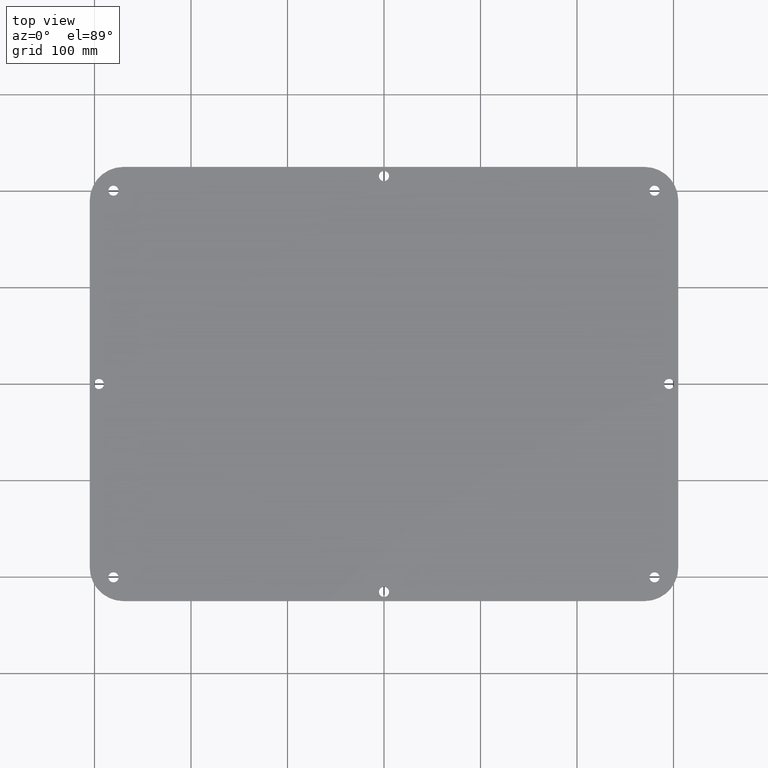
[diagram: clean part render]
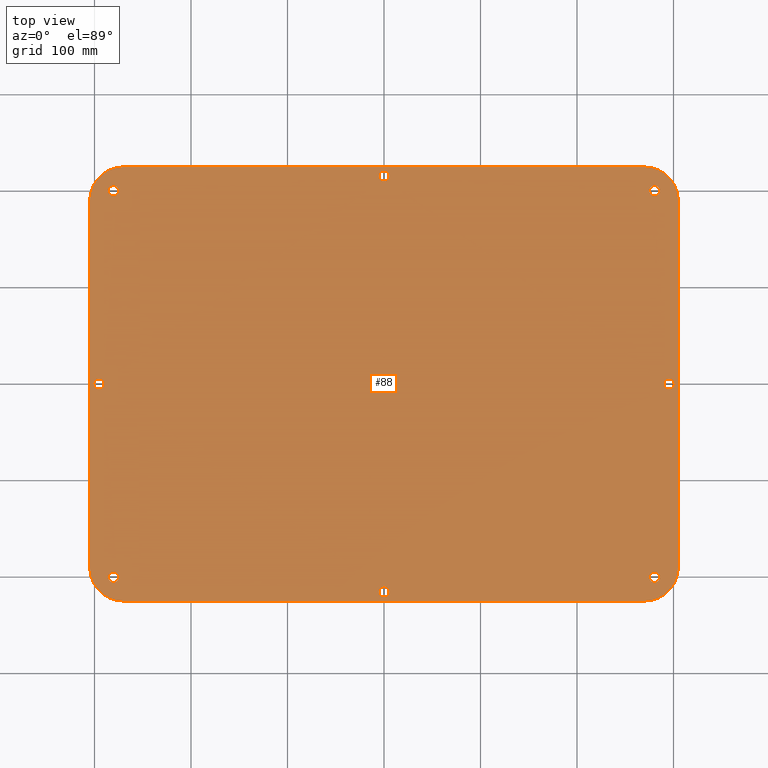
[diagram: same view with one face highlighted and labeled with its STEP entity id]
A machine part, top view. The second image highlights one B-rep face of the part: STEP entity #88.
In plain terms, the highlighted planar face has unit normal (0, 0, 1).
Its self-contained STEP definition (entity closure, byte-faithful):
#50=FACE_BOUND('',#137,.T.);
#51=FACE_BOUND('',#138,.T.);
#52=FACE_BOUND('',#139,.T.);
#53=FACE_BOUND('',#140,.T.);
#54=FACE_BOUND('',#141,.T.);
#55=FACE_BOUND('',#142,.T.);
#56=FACE_BOUND('',#143,.T.);
#57=FACE_BOUND('',#144,.T.);
#70=PLANE('',#403);
#88=ADVANCED_FACE('',(#110,#50,#51,#52,#53,#54,#55,#56,#57),#70,.T.);
#110=FACE_OUTER_BOUND('',#136,.T.);
#136=EDGE_LOOP('',(#234,#235,#236,#237,#238,#239,#240,#241));
#137=EDGE_LOOP('',(#242));
#138=EDGE_LOOP('',(#243));
#139=EDGE_LOOP('',(#244));
#140=EDGE_LOOP('',(#245));
#141=EDGE_LOOP('',(#246));
#142=EDGE_LOOP('',(#247));
#143=EDGE_LOOP('',(#248));
#144=EDGE_LOOP('',(#249));
#158=LINE('',#521,#174);
#162=LINE('',#533,#178);
#166=LINE('',#545,#182);
#169=LINE('',#589,#185);
#174=VECTOR('',#417,1.);
#178=VECTOR('',#429,1.);
#182=VECTOR('',#441,1.);
#185=VECTOR('',#494,1.);
#234=ORIENTED_EDGE('',*,*,#300,.T.);
#235=ORIENTED_EDGE('',*,*,#304,.T.);
#236=ORIENTED_EDGE('',*,*,#307,.T.);
#237=ORIENTED_EDGE('',*,*,#310,.T.);
#238=ORIENTED_EDGE('',*,*,#313,.T.);
#239=ORIENTED_EDGE('',*,*,#316,.T.);
#240=ORIENTED_EDGE('',*,*,#319,.T.);
#241=ORIENTED_EDGE('',*,*,#335,.T.);
#242=ORIENTED_EDGE('',*,*,#332,.T.);
#243=ORIENTED_EDGE('',*,*,#330,.T.);
#244=ORIENTED_EDGE('',*,*,#328,.F.);
#245=ORIENTED_EDGE('',*,*,#326,.F.);
#246=ORIENTED_EDGE('',*,*,#324,.T.);
#247=ORIENTED_EDGE('',*,*,#322,.T.);
#248=ORIENTED_EDGE('',*,*,#320,.F.);
#249=ORIENTED_EDGE('',*,*,#336,.F.);
#268=VERTEX_POINT('',#512);
#269=VERTEX_POINT('',#514);
#271=VERTEX_POINT('',#520);
#273=VERTEX_POINT('',#526);
#275=VERTEX_POINT('',#532);
#277=VERTEX_POINT('',#538);
#279=VERTEX_POINT('',#544);
#281=VERTEX_POINT('',#550);
#282=VERTEX_POINT('',#554);
#284=VERTEX_POINT('',#559);
#286=VERTEX_POINT('',#564);
#288=VERTEX_POINT('',#569);
#290=VERTEX_POINT('',#574);
#292=VERTEX_POINT('',#579);
#294=VERTEX_POINT('',#584);
#296=VERTEX_POINT('',#592);
#300=EDGE_CURVE('',#269,#268,#339,.T.);
#304=EDGE_CURVE('',#268,#271,#158,.T.);
#307=EDGE_CURVE('',#271,#273,#341,.T.);
#310=EDGE_CURVE('',#273,#275,#162,.T.);
#313=EDGE_CURVE('',#275,#277,#343,.T.);
#316=EDGE_CURVE('',#277,#279,#166,.T.);
#319=EDGE_CURVE('',#279,#281,#345,.T.);
#320=EDGE_CURVE('',#282,#282,#346,.T.);
#322=EDGE_CURVE('',#284,#284,#348,.T.);
#324=EDGE_CURVE('',#286,#286,#350,.T.);
#326=EDGE_CURVE('',#288,#288,#352,.T.);
#328=EDGE_CURVE('',#290,#290,#354,.T.);
#330=EDGE_CURVE('',#292,#292,#356,.T.);
#332=EDGE_CURVE('',#294,#294,#358,.T.);
#335=EDGE_CURVE('',#281,#269,#169,.T.);
#336=EDGE_CURVE('',#296,#296,#360,.T.);
#339=CIRCLE('',#364,35.);
#341=CIRCLE('',#368,35.);
#343=CIRCLE('',#372,35.);
#345=CIRCLE('',#376,35.);
#346=CIRCLE('',#378,5.25);
#348=CIRCLE('',#381,5.25);
#350=CIRCLE('',#384,5.25);
#352=CIRCLE('',#387,5.25);
#354=CIRCLE('',#390,5.25);
#356=CIRCLE('',#393,5.25);
#358=CIRCLE('',#396,5.25);
#360=CIRCLE('',#400,5.25);
#364=AXIS2_PLACEMENT_3D('',#513,#410,#411);
#368=AXIS2_PLACEMENT_3D('',#527,#423,#424);
#372=AXIS2_PLACEMENT_3D('',#539,#435,#436);
#376=AXIS2_PLACEMENT_3D('',#551,#447,#448);
#378=AXIS2_PLACEMENT_3D('',#553,#451,#452);
#381=AXIS2_PLACEMENT_3D('',#558,#457,#458);
#384=AXIS2_PLACEMENT_3D('',#563,#463,#464);
#387=AXIS2_PLACEMENT_3D('',#568,#469,#470);
#390=AXIS2_PLACEMENT_3D('',#573,#475,#476);
#393=AXIS2_PLACEMENT_3D('',#578,#481,#482);
#396=AXIS2_PLACEMENT_3D('',#583,#487,#488);
#400=AXIS2_PLACEMENT_3D('',#591,#497,#498);
#403=AXIS2_PLACEMENT_3D('',#596,#503,#504);
#410=DIRECTION('',(0.,0.,1.));
#411=DIRECTION('',(1.,0.,0.));
#417=DIRECTION('',(1.,0.,0.));
#423=DIRECTION('',(0.,0.,1.));
#424=DIRECTION('',(0.999999999999998,0.,0.));
#429=DIRECTION('',(0.,1.,0.));
#435=DIRECTION('',(0.,0.,1.));
#436=DIRECTION('',(0.999999999999998,0.,0.));
#441=DIRECTION('',(-1.,0.,0.));
#447=DIRECTION('',(0.,0.,1.));
#448=DIRECTION('',(1.,0.,0.));
#451=DIRECTION('',(0.,0.,1.));
#452=DIRECTION('',(-0.999999999999996,0.,0.));
#457=DIRECTION('',(0.,0.,-1.));
#458=DIRECTION('',(0.999999999999996,0.,0.));
#463=DIRECTION('',(0.,0.,-1.));
#464=DIRECTION('',(-0.707106781186541,-0.707106781186541,0.));
#469=DIRECTION('',(0.,0.,1.));
#470=DIRECTION('',(0.999999999999996,0.,0.));
#475=DIRECTION('',(0.,0.,1.));
#476=DIRECTION('',(0.999999999999996,0.,0.));
#481=DIRECTION('',(0.,0.,-1.));
#482=DIRECTION('',(-0.999999999999996,0.,0.));
#487=DIRECTION('',(0.,0.,-1.));
#488=DIRECTION('',(0.999999999999996,0.,0.));
#494=DIRECTION('',(0.,-1.,0.));
#497=DIRECTION('',(0.,0.,1.));
#498=DIRECTION('',(0.999999999999996,0.,0.));
#503=DIRECTION('',(0.,0.,1.));
#504=DIRECTION('',(1.,0.,0.));
#512=CARTESIAN_POINT('',(730.,-2725.,4.));
#513=CARTESIAN_POINT('',(730.,-2690.,4.));
#514=CARTESIAN_POINT('',(695.,-2690.,4.));
#520=CARTESIAN_POINT('',(1270.,-2725.,4.));
#521=CARTESIAN_POINT('',(730.,-2725.,4.));
#526=CARTESIAN_POINT('',(1305.,-2690.,4.));
#527=CARTESIAN_POINT('',(1270.,-2690.,4.));
#532=CARTESIAN_POINT('',(1305.,-2310.,4.));
#533=CARTESIAN_POINT('',(1305.,-2690.,4.));
#538=CARTESIAN_POINT('',(1270.,-2275.,4.));
#539=CARTESIAN_POINT('',(1270.,-2310.,4.));
#544=CARTESIAN_POINT('',(730.,-2275.,4.));
#545=CARTESIAN_POINT('',(1270.,-2275.,4.));
#550=CARTESIAN_POINT('',(695.,-2310.,4.));
#551=CARTESIAN_POINT('',(730.,-2310.,4.));
#553=CARTESIAN_POINT('',(1280.37005768509,-2700.37005768509,4.));
#554=CARTESIAN_POINT('',(1275.12005768509,-2700.37005768509,4.));
#558=CARTESIAN_POINT('',(1000.,-2715.5,4.));
#559=CARTESIAN_POINT('',(1005.25,-2715.5,4.));
#563=CARTESIAN_POINT('',(1280.37005768509,-2299.62994231491,4.));
#564=CARTESIAN_POINT('',(1276.65774708386,-2303.34225291614,4.));
#568=CARTESIAN_POINT('',(704.5,-2500.,4.));
#569=CARTESIAN_POINT('',(709.75,-2500.,4.));
#573=CARTESIAN_POINT('',(719.629942314911,-2299.62994231491,4.));
#574=CARTESIAN_POINT('',(724.879942314911,-2299.62994231491,4.));
#578=CARTESIAN_POINT('',(1295.5,-2500.,4.));
#579=CARTESIAN_POINT('',(1290.25,-2500.,4.));
#583=CARTESIAN_POINT('',(719.629942314911,-2700.37005768509,4.));
#584=CARTESIAN_POINT('',(724.879942314911,-2700.37005768509,4.));
#589=CARTESIAN_POINT('',(695.,-2310.,4.));
#591=CARTESIAN_POINT('',(1000.,-2284.5,4.));
#592=CARTESIAN_POINT('',(1005.25,-2284.5,4.));
#596=CARTESIAN_POINT('',(730.,-2690.,4.));